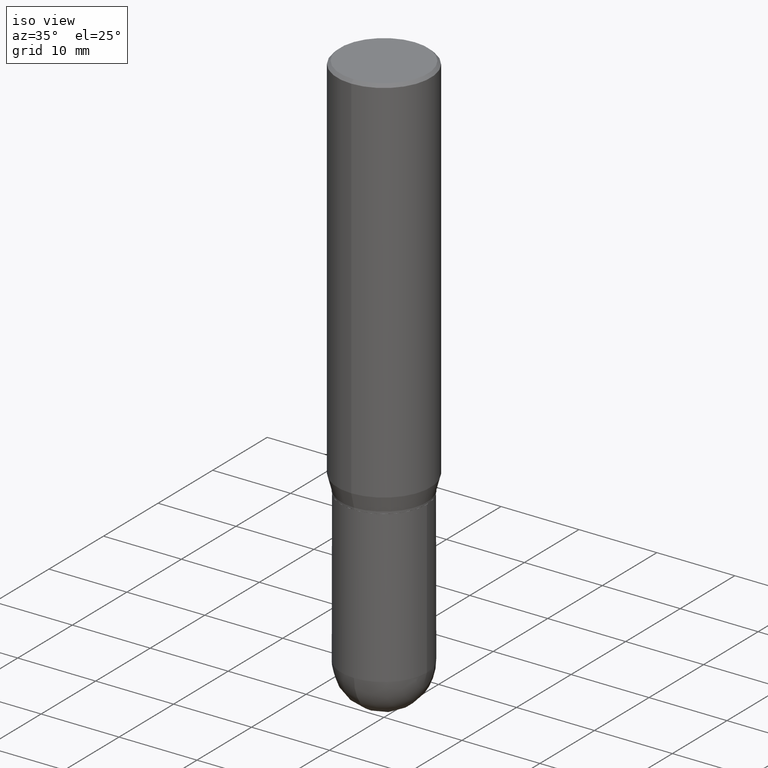
[diagram: clean part render]
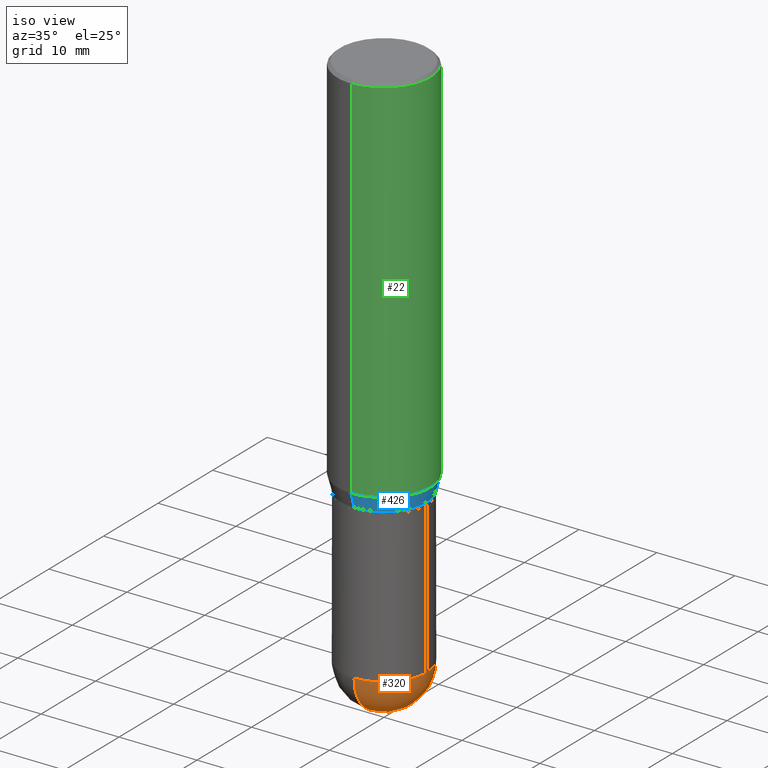
[diagram: same view with three faces highlighted in distinct colors, each labeled with its STEP entity id]
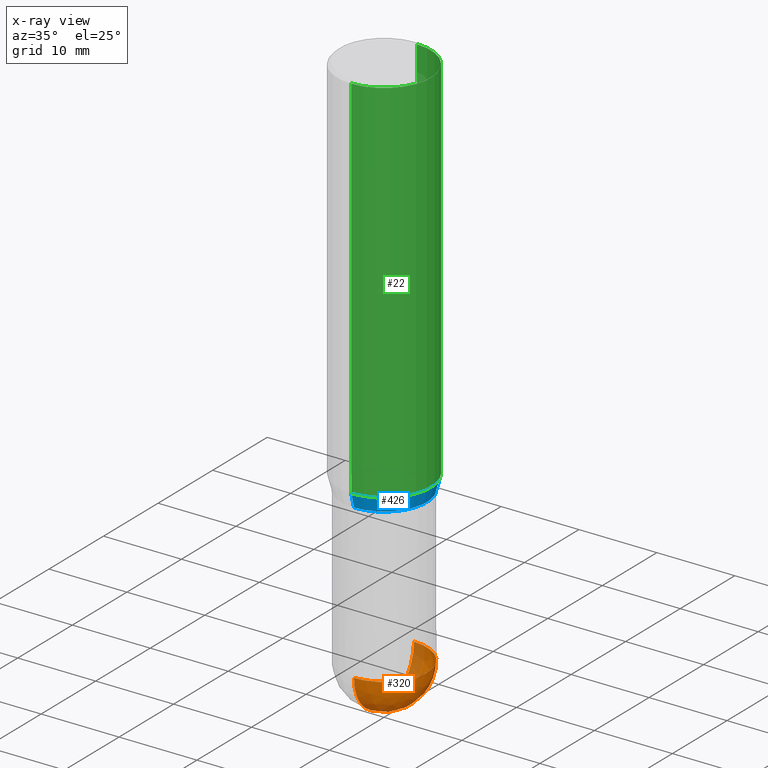
[diagram: x-ray of the same camera — body ghosted, the three highlighted faces saturated]
A machine part, iso view with three faces highlighted in distinct colors.
The next image is the same camera in x-ray (body ghosted, the three faces saturated) — at least one of them is partly hidden behind the body in this view.
Their STEP definitions:

[orange] entity #320 — the highlighted spherical surface has radius 5.5004 mm.
#48 = EDGE_CURVE ( 'NONE', #77, #248, #319, .T. ) ;
#63 = AXIS2_PLACEMENT_3D ( 'NONE', #241, #92, #451 ) ;
#73 = VERTEX_POINT ( 'NONE', #452 ) ;
#77 = VERTEX_POINT ( 'NONE', #493 ) ;
#78 = EDGE_CURVE ( 'NONE', #73, #248, #329, .T. ) ;
#91 = CARTESIAN_POINT ( 'NONE',  ( 1.512160567853028073E-15, 0.2165499999999904723, -2.736249999999999627 ) ) ;
#92 = DIRECTION ( 'NONE',  ( -1.000000000000000000, 6.982962677686265922E-15, -4.883557194083112340E-29 ) ) ;
#109 = AXIS2_PLACEMENT_3D ( 'NONE', #167, #134, #130 ) ;
#130 = DIRECTION ( 'NONE',  ( 1.000000000000000000, -6.982962677686263555E-15, 0.000000000000000000 ) ) ;
#134 = DIRECTION ( 'NONE',  ( -2.445468806185136597E-29, 3.491481338843145583E-15, 1.000000000000000000 ) ) ;
#164 = SPHERICAL_SURFACE ( 'NONE', #63, 0.2165500000000001035 ) ;
#167 = CARTESIAN_POINT ( 'NONE',  ( 6.691414020924076964E-29, -9.553565813409554172E-15, -2.736249999999999183 ) ) ;
#197 = AXIS2_PLACEMENT_3D ( 'NONE', #418, #292, #213 ) ;
#213 = DIRECTION ( 'NONE',  ( 6.982962677686265922E-15, 1.000000000000000000, 0.000000000000000000 ) ) ;
#217 = EDGE_CURVE ( 'NONE', #73, #505, #498, .T. ) ;
#225 = ORIENTED_EDGE ( 'NONE', *, *, #78, .T. ) ;
#241 = CARTESIAN_POINT ( 'NONE',  ( 6.672895394931898871E-29, -9.580085539845092024E-15, -2.736249999999999627 ) ) ;
#248 = VERTEX_POINT ( 'NONE', #91 ) ;
#270 = DIRECTION ( 'NONE',  ( 1.000000000000000000, -6.982962677686263555E-15, 0.000000000000000000 ) ) ;
#272 = AXIS2_PLACEMENT_3D ( 'NONE', #489, #454, #285 ) ;
#276 = ORIENTED_EDGE ( 'NONE', *, *, #335, .F. ) ;
#285 = DIRECTION ( 'NONE',  ( -7.105427357601001070E-15, -1.000000000000000000, 0.000000000000000000 ) ) ;
#292 = DIRECTION ( 'NONE',  ( 1.000000000000000000, -6.982962677686265922E-15, 4.883557194083112340E-29 ) ) ;
#315 = CARTESIAN_POINT ( 'NONE',  ( 6.691414020924076964E-29, -9.553565813409554172E-15, -2.736249999999999183 ) ) ;
#319 = CIRCLE ( 'NONE', #341, 0.2165500000000000480 ) ;
#320 = ADVANCED_FACE ( 'NONE', ( #486 ), #164, .T. ) ;
#325 = CARTESIAN_POINT ( 'NONE',  ( -1.538680294288430240E-15, -0.2165500000000096792, -2.736249999999998295 ) ) ;
#326 = ORIENTED_EDGE ( 'NONE', *, *, #48, .F. ) ;
#329 = CIRCLE ( 'NONE', #197, 0.2165500000000001035 ) ;
#332 = EDGE_LOOP ( 'NONE', ( #444, #225, #326, #276 ) ) ;
#335 = EDGE_CURVE ( 'NONE', #505, #77, #413, .T. ) ;
#341 = AXIS2_PLACEMENT_3D ( 'NONE', #315, #468, #270 ) ;
#413 = CIRCLE ( 'NONE', #109, 0.2165500000000000480 ) ;
#418 = CARTESIAN_POINT ( 'NONE',  ( 6.672895394931898871E-29, -9.580085539845092024E-15, -2.736249999999999627 ) ) ;
#444 = ORIENTED_EDGE ( 'NONE', *, *, #217, .F. ) ;
#451 = DIRECTION ( 'NONE',  ( 6.982962677686265922E-15, 1.000000000000000000, -2.523064413451176940E-15 ) ) ;
#452 = CARTESIAN_POINT ( 'NONE',  ( 7.211720977907380015E-29, -1.032290596055380666E-14, -2.952799999999999869 ) ) ;
#454 = DIRECTION ( 'NONE',  ( -1.000000000000000000, 7.105427357601001070E-15, -4.926315508542082329E-29 ) ) ;
#468 = DIRECTION ( 'NONE',  ( -2.445468806185136597E-29, 3.491481338843145583E-15, 1.000000000000000000 ) ) ;
#486 = FACE_OUTER_BOUND ( 'NONE', #332, .T. ) ;
#489 = CARTESIAN_POINT ( 'NONE',  ( 6.672895394931898871E-29, -9.580085539845092024E-15, -2.736249999999999627 ) ) ;
#493 = CARTESIAN_POINT ( 'NONE',  ( 0.2165500000000000480, -9.725433982314102974E-15, -2.736249999999999183 ) ) ;
#498 = CIRCLE ( 'NONE', #272, 0.2165500000000001035 ) ;
#505 = VERTEX_POINT ( 'NONE', #325 ) ;

[blue] entity #426 — the highlighted conical surface has half-angle 15 deg.
#14 = DIRECTION ( 'NONE',  ( -2.445285210825420164E-29, 3.491744257847858312E-15, 1.000000000000000000 ) ) ;
#25 = DIRECTION ( 'NONE',  ( -2.445285210825420164E-29, 3.491744257847858312E-15, 1.000000000000000000 ) ) ;
#26 = EDGE_CURVE ( 'NONE', #410, #235, #328, .T. ) ;
#42 = EDGE_LOOP ( 'NONE', ( #380, #501, #395, #268 ) ) ;
#44 = DIRECTION ( 'NONE',  ( 1.839019923739599921E-15, 0.2588190451025249028, 0.9659258262890670910 ) ) ;
#53 = CARTESIAN_POINT ( 'NONE',  ( -1.512160567852910730E-15, -0.2165500000000064873, -1.958499999999999019 ) ) ;
#66 = CARTESIAN_POINT ( 'NONE',  ( 4.789091085401585240E-29, -6.838581128995030430E-15, -1.958499999999999908 ) ) ;
#69 = DIRECTION ( 'NONE',  ( -2.445285210825420164E-29, 3.491744257847858312E-15, 1.000000000000000000 ) ) ;
#90 = FACE_OUTER_BOUND ( 'NONE', #42, .T. ) ;
#106 = VERTEX_POINT ( 'NONE', #382 ) ;
#114 = EDGE_CURVE ( 'NONE', #385, #235, #170, .T. ) ;
#152 = DIRECTION ( 'NONE',  ( -6.982962677686265922E-15, -1.000000000000000000, 3.784596620176773299E-15 ) ) ;
#159 = DIRECTION ( 'NONE',  ( -1.807323732225329745E-15, -0.2588190451025181305, 0.9659258262890689783 ) ) ;
#170 = CIRCLE ( 'NONE', #506, 0.2361999999999999933 ) ;
#179 = DIRECTION ( 'NONE',  ( -6.982962677686265922E-15, -1.000000000000000000, 3.784596620176773299E-15 ) ) ;
#195 = AXIS2_PLACEMENT_3D ( 'NONE', #224, #25, #179 ) ;
#224 = CARTESIAN_POINT ( 'NONE',  ( 4.789091085401585240E-29, -6.838581128995030430E-15, -1.958499999999999908 ) ) ;
#235 = VERTEX_POINT ( 'NONE', #331 ) ;
#240 = VECTOR ( 'NONE', #159, 39.37007874015748143 ) ;
#268 = ORIENTED_EDGE ( 'NONE', *, *, #388, .F. ) ;
#328 = LINE ( 'NONE', #408, #425 ) ;
#331 = CARTESIAN_POINT ( 'NONE',  ( 1.678301941865402543E-15, 0.2361999999999934430, -1.885165201631271215 ) ) ;
#336 = LINE ( 'NONE', #53, #240 ) ;
#378 = CARTESIAN_POINT ( 'NONE',  ( -1.649375784469449785E-15, -0.2362000000000065436, -1.885165201631269660 ) ) ;
#380 = ORIENTED_EDGE ( 'NONE', *, *, #436, .T. ) ;
#382 = CARTESIAN_POINT ( 'NONE',  ( -1.512160567852910730E-15, -0.2165500000000064873, -1.958499999999999019 ) ) ;
#383 = DIRECTION ( 'NONE',  ( -6.982962677686265922E-15, -1.000000000000000000, 3.469747663417777397E-15 ) ) ;
#385 = VERTEX_POINT ( 'NONE', #378 ) ;
#388 = EDGE_CURVE ( 'NONE', #106, #385, #336, .T. ) ;
#395 = ORIENTED_EDGE ( 'NONE', *, *, #114, .F. ) ;
#408 = CARTESIAN_POINT ( 'NONE',  ( 1.538680294288542061E-15, 0.2165499999999928316, -1.958500000000000796 ) ) ;
#410 = VERTEX_POINT ( 'NONE', #447 ) ;
#415 = CARTESIAN_POINT ( 'NONE',  ( 4.609766587511666285E-29, -6.582514767890587986E-15, -1.885165201631270548 ) ) ;
#425 = VECTOR ( 'NONE', #44, 39.37007874015748143 ) ;
#426 = ADVANCED_FACE ( 'NONE', ( #90 ), #473, .T. ) ;
#436 = EDGE_CURVE ( 'NONE', #106, #410, #464, .T. ) ;
#447 = CARTESIAN_POINT ( 'NONE',  ( 1.608491118076972302E-15, 0.2165499999999928316, -1.958500000000000796 ) ) ;
#464 = CIRCLE ( 'NONE', #465, 0.2165499999999996594 ) ;
#465 = AXIS2_PLACEMENT_3D ( 'NONE', #66, #69, #152 ) ;
#473 = CONICAL_SURFACE ( 'NONE', #195, 0.2165499999999996594, 0.2617993877991502405 ) ;
#501 = ORIENTED_EDGE ( 'NONE', *, *, #26, .T. ) ;
#506 = AXIS2_PLACEMENT_3D ( 'NONE', #415, #14, #383 ) ;

[green] entity #22 — the highlighted cylindrical surface (partial cylindrical patch) has radius 5.9995 mm, axis along (-0, 0, 1).
#8 = ORIENTED_EDGE ( 'NONE', *, *, #422, .T. ) ;
#12 = CARTESIAN_POINT ( 'NONE',  ( 3.667927816238115689E-31, -5.237616386771767056E-17, -0.01499999999999994046 ) ) ;
#14 = DIRECTION ( 'NONE',  ( -2.445285210825420164E-29, 3.491744257847858312E-15, 1.000000000000000000 ) ) ;
#16 = DIRECTION ( 'NONE',  ( -2.445285210825420164E-29, 3.491744257847858312E-15, 1.000000000000000000 ) ) ;
#22 = ADVANCED_FACE ( 'NONE', ( #234 ), #160, .T. ) ;
#29 = CARTESIAN_POINT ( 'NONE',  ( -1.649375784469495934E-15, -0.2361999999999999933, 8.247499937036640282E-16 ) ) ;
#40 = CARTESIAN_POINT ( 'NONE',  ( -1.649375784469495539E-15, -0.2362000000000000766, -0.01499999999999911647 ) ) ;
#81 = VERTEX_POINT ( 'NONE', #139 ) ;
#89 = ORIENTED_EDGE ( 'NONE', *, *, #177, .F. ) ;
#98 = DIRECTION ( 'NONE',  ( -6.982962677686265922E-15, -1.000000000000000000, 3.487819265831411744E-15 ) ) ;
#114 = EDGE_CURVE ( 'NONE', #385, #235, #170, .T. ) ;
#139 = CARTESIAN_POINT ( 'NONE',  ( 1.678301941865403134E-15, 0.2361999999999999655, -0.01500000000000076446 ) ) ;
#145 = AXIS2_PLACEMENT_3D ( 'NONE', #12, #16, #98 ) ;
#160 = CYLINDRICAL_SURFACE ( 'NONE', #445, 0.2361999999999999933 ) ;
#170 = CIRCLE ( 'NONE', #506, 0.2361999999999999933 ) ;
#177 = EDGE_CURVE ( 'NONE', #277, #81, #375, .T. ) ;
#186 = DIRECTION ( 'NONE',  ( -2.445285210825420164E-29, 3.491744257847858312E-15, 1.000000000000000000 ) ) ;
#190 = CARTESIAN_POINT ( 'NONE',  ( 0.000000000000000000, 0.000000000000000000, 0.000000000000000000 ) ) ;
#205 = ORIENTED_EDGE ( 'NONE', *, *, #114, .T. ) ;
#234 = FACE_OUTER_BOUND ( 'NONE', #282, .T. ) ;
#235 = VERTEX_POINT ( 'NONE', #331 ) ;
#237 = ORIENTED_EDGE ( 'NONE', *, *, #291, .F. ) ;
#243 = DIRECTION ( 'NONE',  ( -6.982962677686265922E-15, -1.000000000000000000, 3.491744257847857918E-15 ) ) ;
#277 = VERTEX_POINT ( 'NONE', #40 ) ;
#282 = EDGE_LOOP ( 'NONE', ( #205, #8, #89, #237 ) ) ;
#284 = DIRECTION ( 'NONE',  ( -2.445285210825420164E-29, 3.491744257847858312E-15, 1.000000000000000000 ) ) ;
#290 = VECTOR ( 'NONE', #186, 39.37007874015748143 ) ;
#291 = EDGE_CURVE ( 'NONE', #385, #277, #479, .T. ) ;
#330 = CARTESIAN_POINT ( 'NONE',  ( 1.678301941865356394E-15, 0.2361999999999999933, -8.247499937036640282E-16 ) ) ;
#331 = CARTESIAN_POINT ( 'NONE',  ( 1.678301941865402543E-15, 0.2361999999999934430, -1.885165201631271215 ) ) ;
#363 = VECTOR ( 'NONE', #284, 39.37007874015748143 ) ;
#372 = LINE ( 'NONE', #330, #363 ) ;
#375 = CIRCLE ( 'NONE', #145, 0.2361999999999999933 ) ;
#378 = CARTESIAN_POINT ( 'NONE',  ( -1.649375784469449785E-15, -0.2362000000000065436, -1.885165201631269660 ) ) ;
#383 = DIRECTION ( 'NONE',  ( -6.982962677686265922E-15, -1.000000000000000000, 3.469747663417777397E-15 ) ) ;
#385 = VERTEX_POINT ( 'NONE', #378 ) ;
#415 = CARTESIAN_POINT ( 'NONE',  ( 4.609766587511666285E-29, -6.582514767890587986E-15, -1.885165201631270548 ) ) ;
#422 = EDGE_CURVE ( 'NONE', #235, #81, #372, .T. ) ;
#441 = DIRECTION ( 'NONE',  ( -2.445285210825420164E-29, 3.491744257847858312E-15, 1.000000000000000000 ) ) ;
#445 = AXIS2_PLACEMENT_3D ( 'NONE', #190, #441, #243 ) ;
#479 = LINE ( 'NONE', #29, #290 ) ;
#506 = AXIS2_PLACEMENT_3D ( 'NONE', #415, #14, #383 ) ;